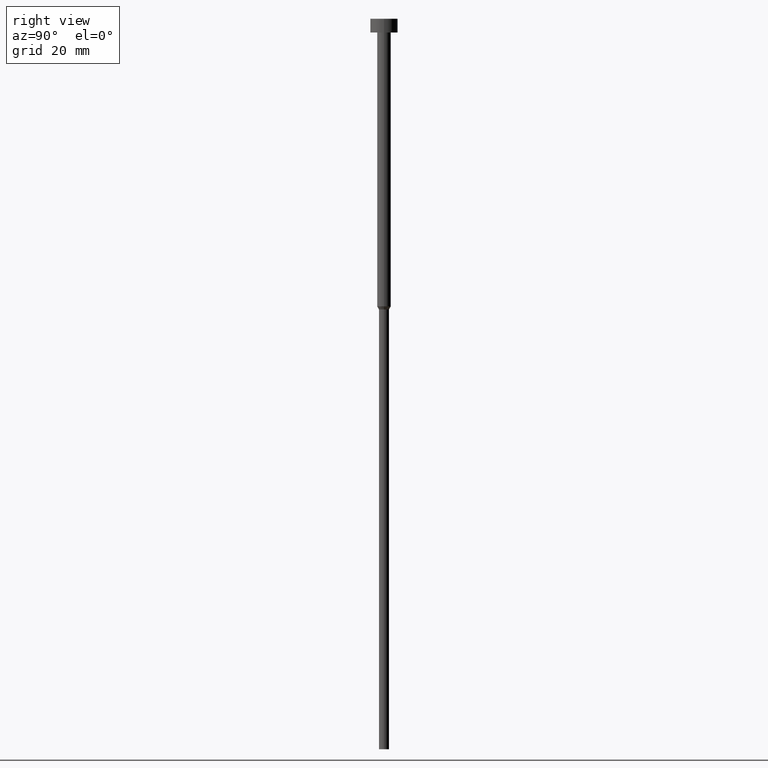
[diagram: clean part render]
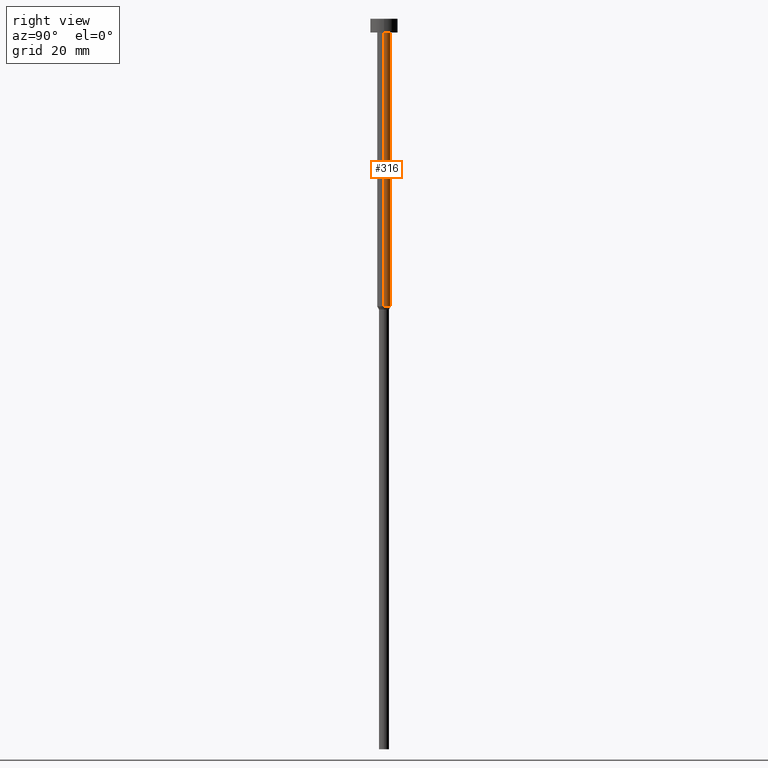
[diagram: same view with one face highlighted and labeled with its STEP entity id]
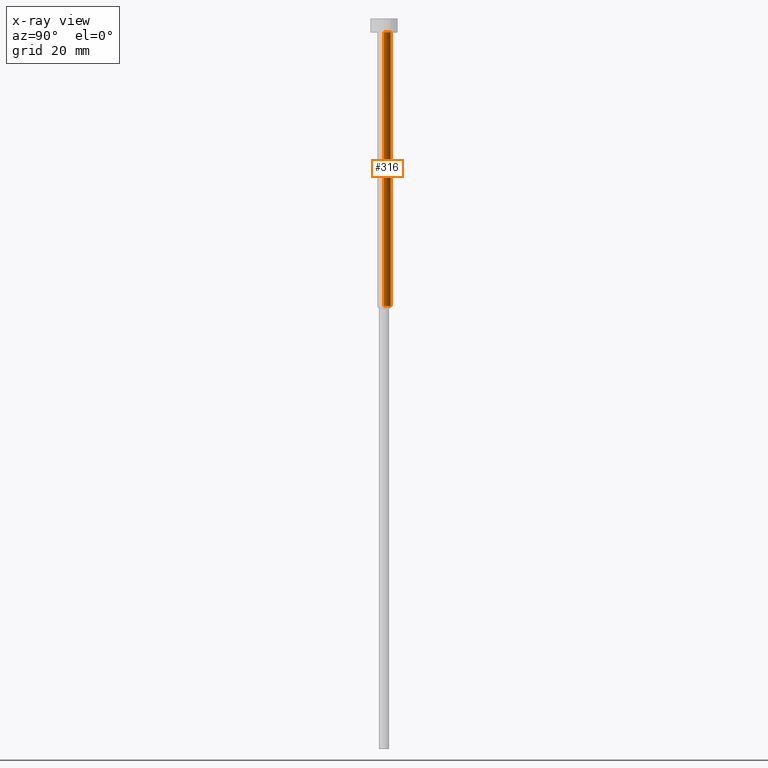
[diagram: x-ray of the same camera — body ghosted, the highlighted face saturated]
A machine part, right view. The second image highlights one B-rep face of the part: STEP entity #316.
The next image is the same camera in x-ray: the body ghosted, the highlighted face saturated — about 0% of this face is hidden behind the body in this view.
In plain terms, the highlighted cylindrical surface (edge-blend (fillet) strip) has radius 1.5 mm, axis along (-0, -0, 1).
Its self-contained STEP definition (entity closure, byte-faithful):
#2 = CIRCLE ( 'NONE', #9, 1.500000000000000000 ) ;
#3 = ORIENTED_EDGE ( 'NONE', *, *, #284, .T. ) ;
#9 = AXIS2_PLACEMENT_3D ( 'NONE', #227, #241, #317 ) ;
#36 = CIRCLE ( 'NONE', #145, 1.500000000000000000 ) ;
#48 = EDGE_LOOP ( 'NONE', ( #192, #3, #250, #136 ) ) ;
#54 = VECTOR ( 'NONE', #217, 1000.000000000000000 ) ;
#60 = CARTESIAN_POINT ( 'NONE',  ( 1.500000000000000000, 0.000000000000000000, -63.00000000000000000 ) ) ;
#65 = EDGE_CURVE ( 'NONE', #248, #330, #103, .T. ) ;
#72 = AXIS2_PLACEMENT_3D ( 'NONE', #188, #293, #123 ) ;
#93 = FACE_OUTER_BOUND ( 'NONE', #48, .T. ) ;
#102 = DIRECTION ( 'NONE',  ( -0.000000000000000000, -0.000000000000000000, 1.000000000000000000 ) ) ;
#103 = LINE ( 'NONE', #274, #54 ) ;
#123 = DIRECTION ( 'NONE',  ( 1.000000000000000000, 0.000000000000000000, 0.000000000000000000 ) ) ;
#136 = ORIENTED_EDGE ( 'NONE', *, *, #65, .F. ) ;
#145 = AXIS2_PLACEMENT_3D ( 'NONE', #348, #102, #216 ) ;
#188 = CARTESIAN_POINT ( 'NONE',  ( 0.000000000000000000, 0.000000000000000000, 0.000000000000000000 ) ) ;
#191 = LINE ( 'NONE', #238, #279 ) ;
#192 = ORIENTED_EDGE ( 'NONE', *, *, #270, .T. ) ;
#216 = DIRECTION ( 'NONE',  ( 1.000000000000000000, 0.000000000000000000, 0.000000000000000000 ) ) ;
#217 = DIRECTION ( 'NONE',  ( -0.000000000000000000, -0.000000000000000000, 1.000000000000000000 ) ) ;
#227 = CARTESIAN_POINT ( 'NONE',  ( 0.000000000000000000, 0.000000000000000000, -63.00000000000000000 ) ) ;
#238 = CARTESIAN_POINT ( 'NONE',  ( -1.500000000000000000, 1.836970198721029934E-16, 0.000000000000000000 ) ) ;
#239 = CARTESIAN_POINT ( 'NONE',  ( -1.500000000000000000, 1.836970198721029934E-16, -63.00000000000000000 ) ) ;
#241 = DIRECTION ( 'NONE',  ( -0.000000000000000000, -0.000000000000000000, 1.000000000000000000 ) ) ;
#248 = VERTEX_POINT ( 'NONE', #60 ) ;
#250 = ORIENTED_EDGE ( 'NONE', *, *, #355, .F. ) ;
#266 = CARTESIAN_POINT ( 'NONE',  ( 1.500000000000000000, 0.000000000000000000, -3.000000000000000888 ) ) ;
#270 = EDGE_CURVE ( 'NONE', #248, #275, #2, .T. ) ;
#274 = CARTESIAN_POINT ( 'NONE',  ( 1.500000000000000000, 0.000000000000000000, 0.000000000000000000 ) ) ;
#275 = VERTEX_POINT ( 'NONE', #239 ) ;
#276 = VERTEX_POINT ( 'NONE', #344 ) ;
#279 = VECTOR ( 'NONE', #291, 1000.000000000000000 ) ;
#284 = EDGE_CURVE ( 'NONE', #275, #276, #191, .T. ) ;
#291 = DIRECTION ( 'NONE',  ( -0.000000000000000000, -0.000000000000000000, 1.000000000000000000 ) ) ;
#293 = DIRECTION ( 'NONE',  ( -0.000000000000000000, -0.000000000000000000, 1.000000000000000000 ) ) ;
#316 = ADVANCED_FACE ( 'NONE', ( #93 ), #318, .T. ) ;
#317 = DIRECTION ( 'NONE',  ( 1.000000000000000000, 0.000000000000000000, 0.000000000000000000 ) ) ;
#318 = CYLINDRICAL_SURFACE ( 'NONE', #72, 1.500000000000000000 ) ;
#330 = VERTEX_POINT ( 'NONE', #266 ) ;
#344 = CARTESIAN_POINT ( 'NONE',  ( -1.500000000000000000, 1.836970198721029934E-16, -3.000000000000000888 ) ) ;
#348 = CARTESIAN_POINT ( 'NONE',  ( 0.000000000000000000, 0.000000000000000000, -3.000000000000000888 ) ) ;
#355 = EDGE_CURVE ( 'NONE', #330, #276, #36, .T. ) ;